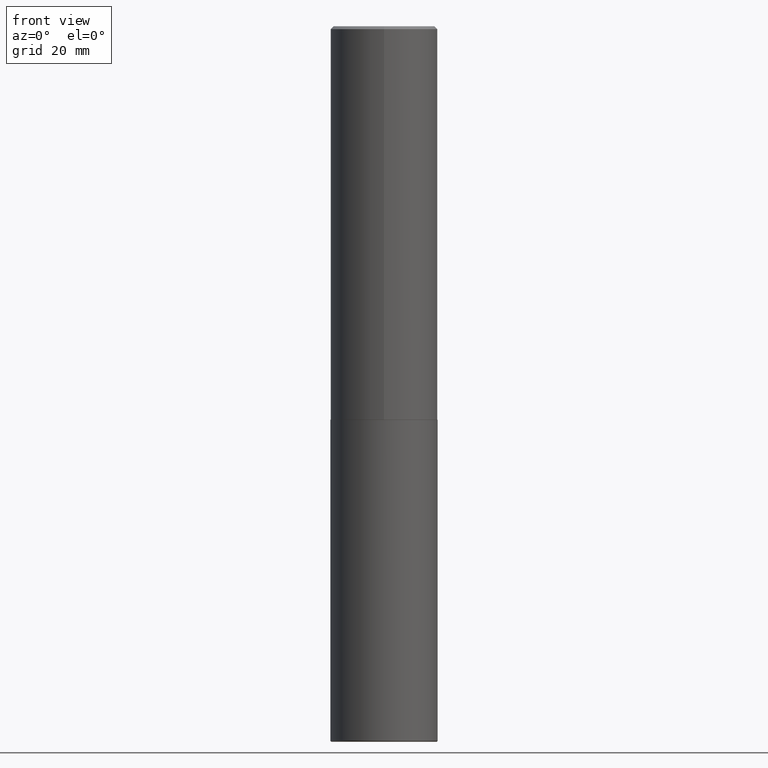
[diagram: clean part render]
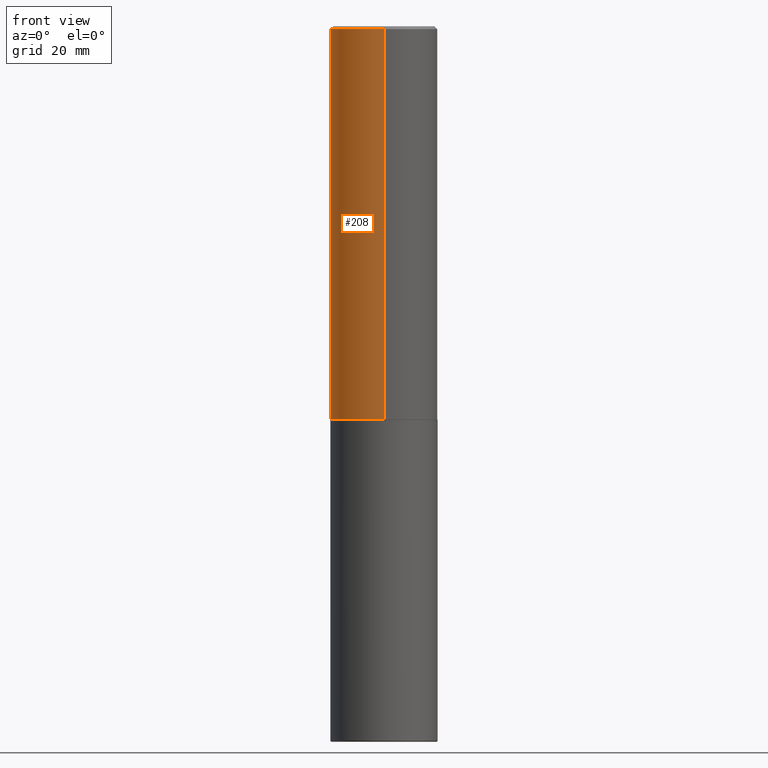
[diagram: same view with one face highlighted and labeled with its STEP entity id]
A machine part, front view. The second image highlights one B-rep face of the part: STEP entity #208.
In plain terms, the highlighted cylindrical surface (partial cylindrical patch) has radius 9.525 mm, axis along (-0, 0, 1).
Its self-contained STEP definition (entity closure, byte-faithful):
#21 = DIRECTION ( 'NONE',  ( -2.446040391741596606E-29, 3.490662795793665557E-15, 1.000000000000000000 ) ) ;
#38 = VERTEX_POINT ( 'NONE', #112 ) ;
#46 = LINE ( 'NONE', #313, #352 ) ;
#53 = LINE ( 'NONE', #247, #402 ) ;
#61 = EDGE_CURVE ( 'NONE', #174, #205, #46, .T. ) ;
#67 = CYLINDRICAL_SURFACE ( 'NONE', #80, 0.3750000000000002220 ) ;
#77 = CARTESIAN_POINT ( 'NONE',  ( 6.724165036897648492E-29, -9.595832025636787455E-15, -2.749000000000000110 ) ) ;
#80 = AXIS2_PLACEMENT_3D ( 'NONE', #390, #375, #140 ) ;
#84 = DIRECTION ( 'NONE',  ( -2.446040391741596606E-29, 3.490662795793665557E-15, 1.000000000000000000 ) ) ;
#91 = EDGE_CURVE ( 'NONE', #38, #370, #53, .T. ) ;
#112 = CARTESIAN_POINT ( 'NONE',  ( 2.664535259100411196E-15, 0.3749999999999907296, -2.749000000000000998 ) ) ;
#139 = AXIS2_PLACEMENT_3D ( 'NONE', #77, #350, #151 ) ;
#140 = DIRECTION ( 'NONE',  ( -6.982962677686266711E-15, -1.000000000000000000, 3.490662795793665951E-15 ) ) ;
#149 = CARTESIAN_POINT ( 'NONE',  ( -2.572686749164323547E-15, -0.3750000000000001110, -0.01999999999999877570 ) ) ;
#151 = DIRECTION ( 'NONE',  ( -6.982962677686265922E-15, -1.000000000000000000, 2.913971193241877611E-15 ) ) ;
#152 = EDGE_CURVE ( 'NONE', #370, #205, #283, .T. ) ;
#158 = ORIENTED_EDGE ( 'NONE', *, *, #412, .T. ) ;
#174 = VERTEX_POINT ( 'NONE', #385 ) ;
#176 = CARTESIAN_POINT ( 'NONE',  ( 2.618611004132350411E-15, 0.3749999999999999445, -0.02000000000000139513 ) ) ;
#194 = AXIS2_PLACEMENT_3D ( 'NONE', #214, #413, #315 ) ;
#205 = VERTEX_POINT ( 'NONE', #149 ) ;
#208 = ADVANCED_FACE ( 'NONE', ( #285 ), #67, .T. ) ;
#214 = CARTESIAN_POINT ( 'NONE',  ( 4.892080783483214581E-31, -6.981325591587361238E-17, -0.02000000000000008715 ) ) ;
#227 = ORIENTED_EDGE ( 'NONE', *, *, #152, .F. ) ;
#228 = CIRCLE ( 'NONE', #139, 0.3750000000000003886 ) ;
#247 = CARTESIAN_POINT ( 'NONE',  ( 2.664535259100376880E-15, 0.3750000000000002220, -1.308998548422625521E-15 ) ) ;
#283 = CIRCLE ( 'NONE', #194, 0.3750000000000000555 ) ;
#285 = FACE_OUTER_BOUND ( 'NONE', #393, .T. ) ;
#307 = ORIENTED_EDGE ( 'NONE', *, *, #61, .T. ) ;
#313 = CARTESIAN_POINT ( 'NONE',  ( -2.618611004132351594E-15, -0.3750000000000002220, 1.308998548422625521E-15 ) ) ;
#315 = DIRECTION ( 'NONE',  ( -6.982962677686265922E-15, -1.000000000000000000, 3.494488891895536035E-15 ) ) ;
#350 = DIRECTION ( 'NONE',  ( -2.446040391741596606E-29, 3.490662795793665557E-15, 1.000000000000000000 ) ) ;
#352 = VECTOR ( 'NONE', #21, 39.37007874015748143 ) ;
#370 = VERTEX_POINT ( 'NONE', #176 ) ;
#375 = DIRECTION ( 'NONE',  ( -2.446040391741596606E-29, 3.490662795793665557E-15, 1.000000000000000000 ) ) ;
#385 = CARTESIAN_POINT ( 'NONE',  ( -2.618611004132284935E-15, -0.3750000000000099920, -2.748999999999999222 ) ) ;
#390 = CARTESIAN_POINT ( 'NONE',  ( 0.000000000000000000, 0.000000000000000000, 0.000000000000000000 ) ) ;
#393 = EDGE_LOOP ( 'NONE', ( #400, #158, #307, #227 ) ) ;
#400 = ORIENTED_EDGE ( 'NONE', *, *, #91, .F. ) ;
#402 = VECTOR ( 'NONE', #84, 39.37007874015748143 ) ;
#412 = EDGE_CURVE ( 'NONE', #38, #174, #228, .T. ) ;
#413 = DIRECTION ( 'NONE',  ( -2.446040391741596606E-29, 3.490662795793665557E-15, 1.000000000000000000 ) ) ;